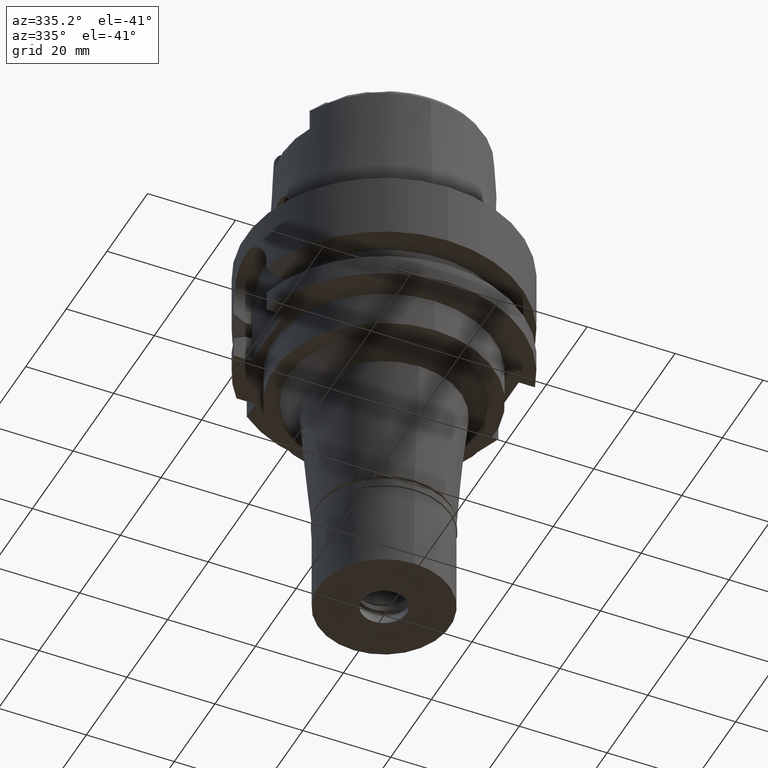
[diagram: clean part render]
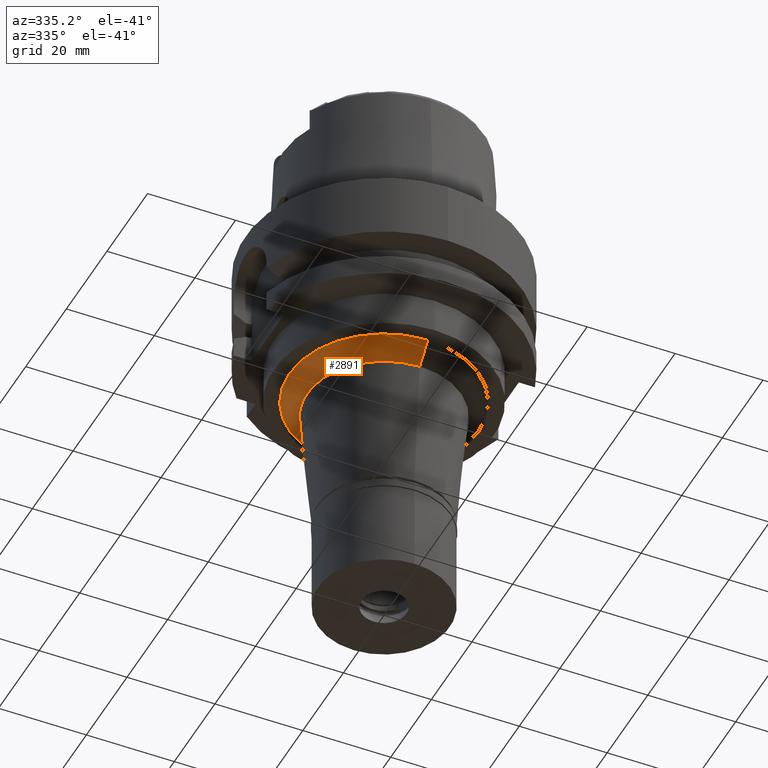
[diagram: same view with one face highlighted and labeled with its STEP entity id]
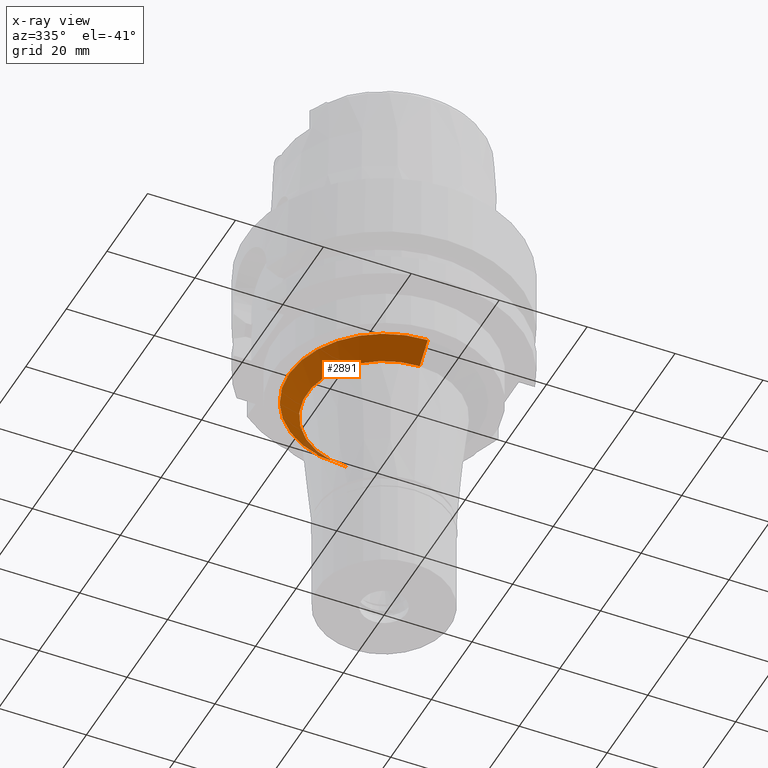
[diagram: x-ray of the same camera — body ghosted, the highlighted face saturated]
A machine part, auxiliary view. The second image highlights one B-rep face of the part: STEP entity #2891.
The next image is the same camera in x-ray: the body ghosted, the highlighted face saturated — about 2% of this face is hidden behind the body in this view.
In plain terms, the highlighted conical surface has half-angle 45 deg.
Its self-contained STEP definition (entity closure, byte-faithful):
#177 = VERTEX_POINT ( 'NONE', #4700 ) ;
#216 = VERTEX_POINT ( 'NONE', #4676 ) ;
#368 = LINE ( 'NONE', #5198, #4369 ) ;
#712 = CARTESIAN_POINT ( 'NONE',  ( 0.0000000000000000000, 17.55466897496000200, -38.00000000000000000 ) ) ;
#1125 = LINE ( 'NONE', #1576, #4191 ) ;
#1236 = DIRECTION ( 'NONE',  ( 0.0000000000000000000, -1.000000000000000000, 0.0000000000000000000 ) ) ;
#1263 = DIRECTION ( 'NONE',  ( 0.0000000000000000000, 1.000000000000000000, 0.0000000000000000000 ) ) ;
#1357 = CARTESIAN_POINT ( 'NONE',  ( 0.0000000000000000000, -17.55466897496000200, -38.00000000000000000 ) ) ;
#1481 = CIRCLE ( 'NONE', #2210, 21.55466897496000200 ) ;
#1505 = VERTEX_POINT ( 'NONE', #1357 ) ;
#1576 = CARTESIAN_POINT ( 'NONE',  ( 0.0000000000000000000, -21.55466897496000200, -34.00000000000000000 ) ) ;
#2050 = EDGE_CURVE ( 'NONE', #1505, #2732, #3916, .T. ) ;
#2208 = ORIENTED_EDGE ( 'NONE', *, *, #3431, .F. ) ;
#2210 = AXIS2_PLACEMENT_3D ( 'NONE', #3857, #5142, #1236 ) ;
#2569 = AXIS2_PLACEMENT_3D ( 'NONE', #3060, #4357, #3514 ) ;
#2613 = CARTESIAN_POINT ( 'NONE',  ( 0.0000000000000000000, 0.0000000000000000000, -36.00000000000000000 ) ) ;
#2732 = VERTEX_POINT ( 'NONE', #712 ) ;
#2744 = AXIS2_PLACEMENT_3D ( 'NONE', #2613, #3911, #1263 ) ;
#2891 = ADVANCED_FACE ( 'NONE', ( #3412 ), #3654, .T. ) ;
#2979 = EDGE_CURVE ( 'NONE', #177, #216, #1481, .T. ) ;
#3060 = CARTESIAN_POINT ( 'NONE',  ( 0.0000000000000000000, 0.0000000000000000000, -38.00000000000000000 ) ) ;
#3412 = FACE_OUTER_BOUND ( 'NONE', #5093, .T. ) ;
#3431 = EDGE_CURVE ( 'NONE', #177, #1505, #1125, .T. ) ;
#3514 = DIRECTION ( 'NONE',  ( 0.0000000000000000000, -1.000000000000000000, 0.0000000000000000000 ) ) ;
#3654 = CONICAL_SURFACE ( 'NONE', #2744, 19.55466897496000200, 0.7853981633972997312 ) ;
#3857 = CARTESIAN_POINT ( 'NONE',  ( 0.0000000000000000000, 0.0000000000000000000, -34.00000000000000000 ) ) ;
#3895 = EDGE_CURVE ( 'NONE', #216, #2732, #368, .T. ) ;
#3911 = DIRECTION ( 'NONE',  ( 0.0000000000000000000, 0.0000000000000000000, 1.000000000000000000 ) ) ;
#3916 = CIRCLE ( 'NONE', #2569, 17.55466897496000200 ) ;
#4191 = VECTOR ( 'NONE', #4578, 1000.000000000000000 ) ;
#4357 = DIRECTION ( 'NONE',  ( 0.0000000000000000000, 0.0000000000000000000, -1.000000000000000000 ) ) ;
#4369 = VECTOR ( 'NONE', #5601, 1000.000000000000000 ) ;
#4578 = DIRECTION ( 'NONE',  ( 0.0000000000000000000, 0.7071067811865969777, -0.7071067811864980568 ) ) ;
#4676 = CARTESIAN_POINT ( 'NONE',  ( 0.0000000000000000000, 21.55466897496000200, -34.00000000000000000 ) ) ;
#4700 = CARTESIAN_POINT ( 'NONE',  ( 0.0000000000000000000, -21.55466897496000200, -34.00000000000000000 ) ) ;
#5093 = EDGE_LOOP ( 'NONE', ( #5371, #2208, #5385, #5158 ) ) ;
#5142 = DIRECTION ( 'NONE',  ( 0.0000000000000000000, 0.0000000000000000000, -1.000000000000000000 ) ) ;
#5158 = ORIENTED_EDGE ( 'NONE', *, *, #3895, .T. ) ;
#5198 = CARTESIAN_POINT ( 'NONE',  ( 0.0000000000000000000, 21.55466897496000200, -34.00000000000000000 ) ) ;
#5371 = ORIENTED_EDGE ( 'NONE', *, *, #2050, .F. ) ;
#5385 = ORIENTED_EDGE ( 'NONE', *, *, #2979, .T. ) ;
#5601 = DIRECTION ( 'NONE',  ( 0.0000000000000000000, -0.7071067811865969777, -0.7071067811864980568 ) ) ;